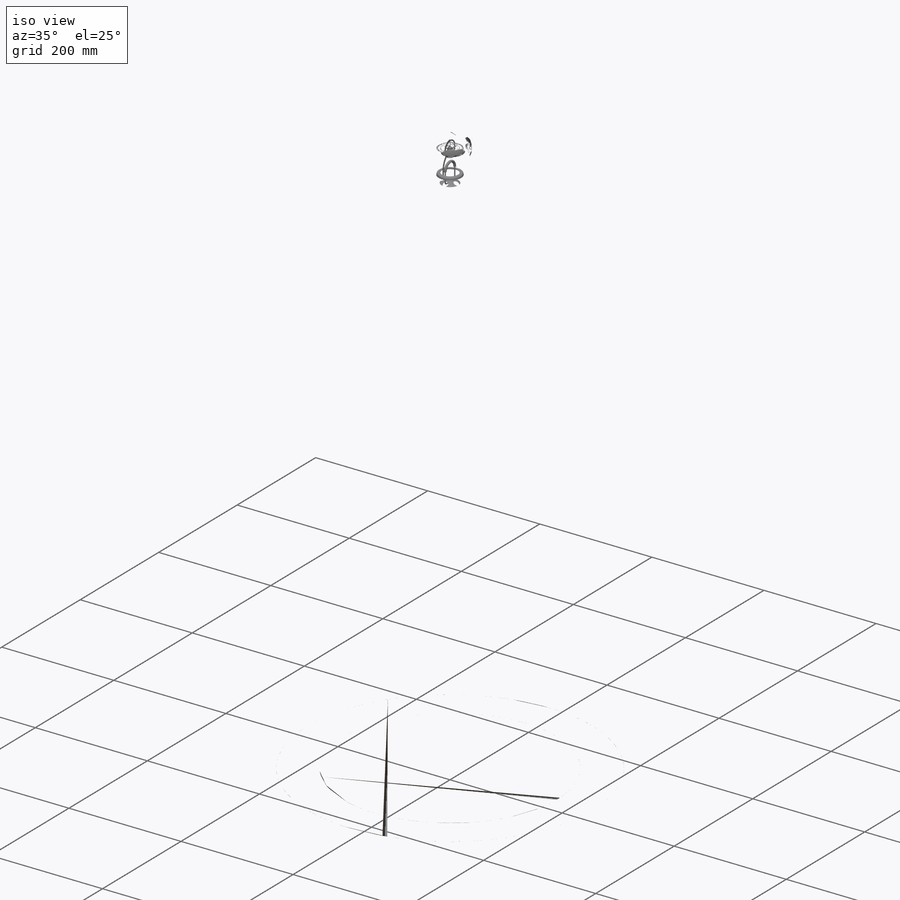
[diagram: iso view]
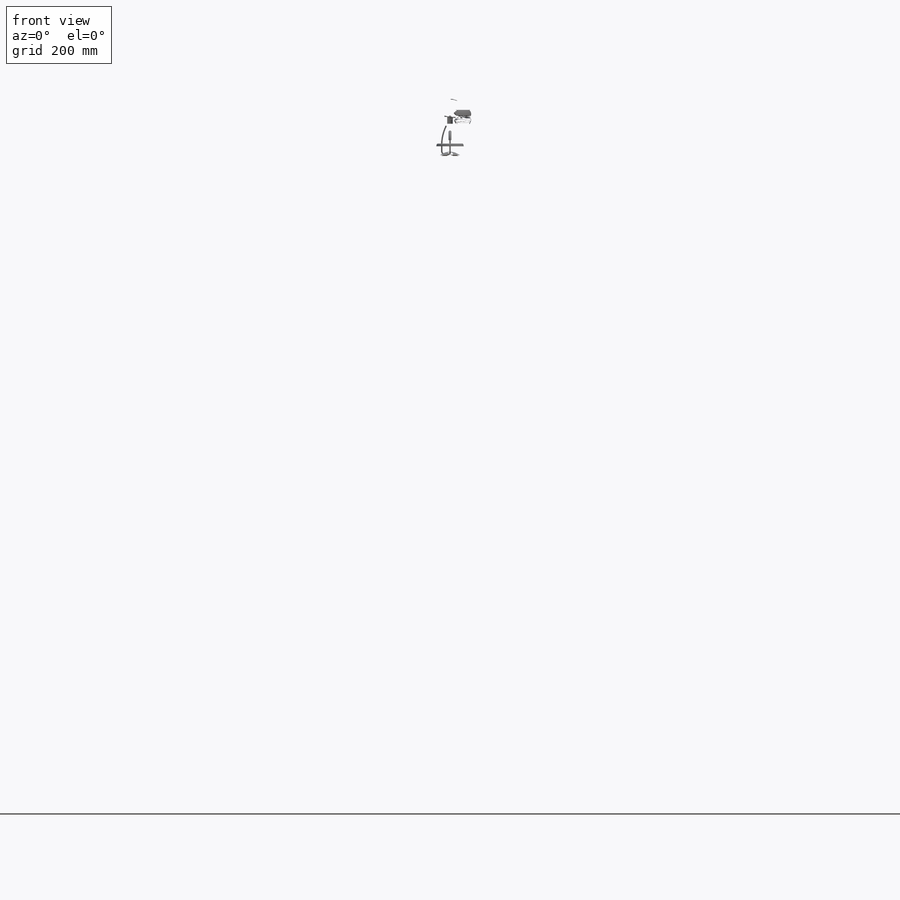
[diagram: front view]
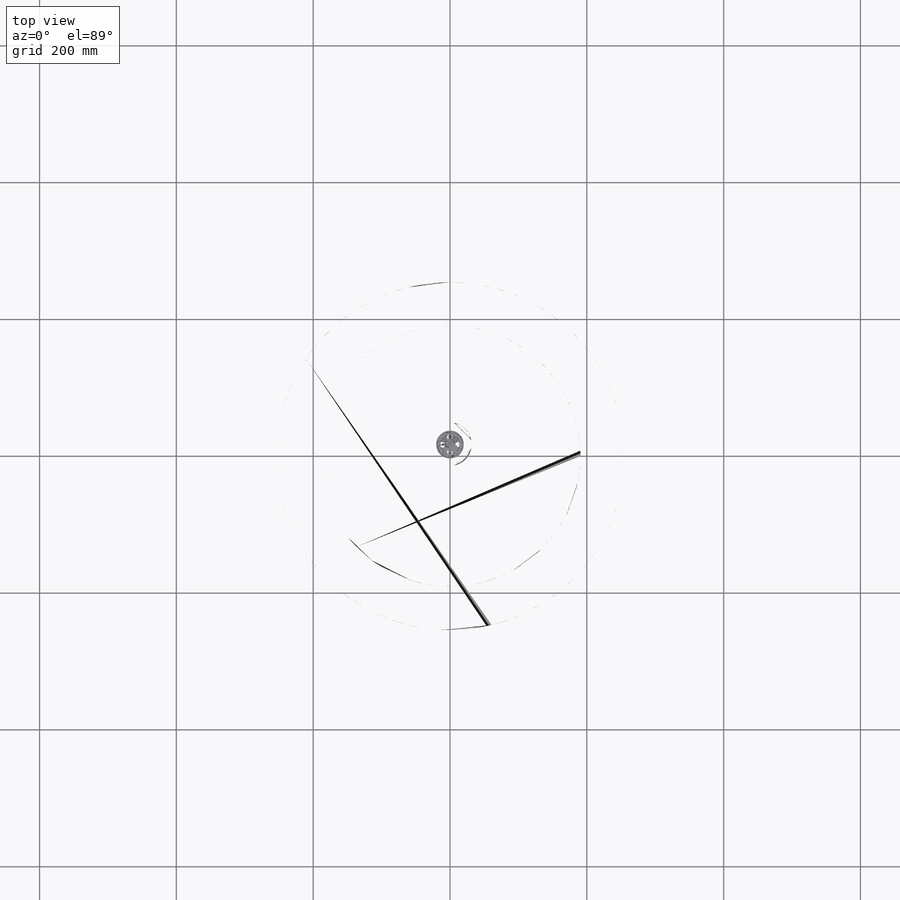
[diagram: top view]
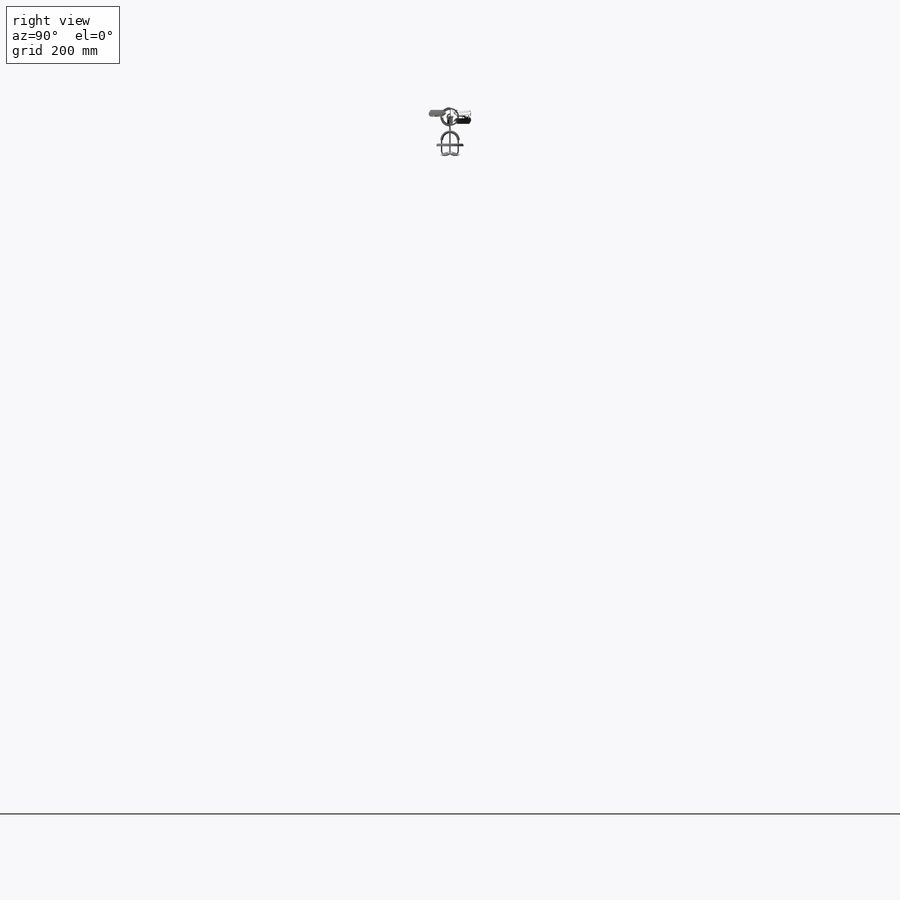
[diagram: right view]
SOLIDWORKS PART (.sldprt)
format: sldprt  version: not decoded by parser v0  size: 1,782,272 bytes
history: native  units: mm
features: thread x25, fillet x8, extrude x6, plane x4, cut_extrude x4, sweep x4, mirror x3, cut_revolve x2, material x1, sketch x1, revolve x1 (+9 scaffold rows collapsed)
feature tree (68):
  scaffold x9  (default folders/planes/origin — collapsed)
  material  "Tvárná litina"
  plane  "Přední rovina"
  plane  "Horní rovina"
  plane  "Pravá rovina"
  sketch  "Skica1"  dims[D1=10.0mm]
  extrude  "Přidat vysunutím1"  [1 undecoded]
  thread  "Kosmetický závit2"  Diameter=7mm  [1 undecoded]
  thread  "Skica2"  [2 undecoded]
  extrude  "Přidat vysunutím2"  Depth=5mm
  thread  "Skica5"  [2 undecoded]
  cut_extrude  "Odebrat vysunutím1"  Depth=5mm
  thread  "Skica6"  [2 undecoded]
  cut_extrude  "Odebrat vysunutím2"  Depth=5mm
  thread  "Skica7"  Diameter=50mm  [1 undecoded]
  thread  "Skica8"  [2 undecoded]
  sweep  "Táhnout po křivce1"
  mirror  "Zrcadlit1"
  fillet  "Zaoblit2"  Radius=1mm
  thread  "Skica11"  Diameter=2mm  [1 undecoded]
  revolve  "Rotovat1"  Angle=360deg
  thread  "Skica14"  Diameter=6mm  [1 undecoded]
  extrude  "Přidat vysunutím3"  [1 undecoded]
  thread  "Skica17"  [2 undecoded]
  thread  "Skica18"  [2 undecoded]
  thread  "Skica19"  Diameter=25.345325mm Rotovat2=65536  [1 undecoded]
  thread  "Skica20"  Diameter=4mm  [1 undecoded]
  thread  "Skica21"  Diameter=30mm  [1 undecoded]
  sweep  "Táhnout po křivce2"
  fillet  "Zaoblit4"  Radius=2mm
  thread  "Skica22"  Diameter=30mm  [1 undecoded]
  extrude  "Přidat vysunutím4"  Depth=1mm
  fillet  "Zaoblit5"  Radius=1.5mm
  thread  "Skica23"  Diameter=1.5mm  [1 undecoded]
  cut_revolve  "Odebrat rotací1"  Angle=360deg
  thread  "Skica24"  Diameter=3mm  [1 undecoded]
  extrude  "Přidat vysunutím6"  [1 undecoded]
  thread  "Skica25"  Diameter=8mm  [1 undecoded]
  cut_extrude  "Odebrat vysunutím3"  Depth=1.5mm
  thread  "Skica26"  Diameter=0mm  [1 undecoded]
  thread  "Skica29"  Diameter=2mm  [1 undecoded]
  cut_revolve  "Odebrat rotací3"  Angle=360deg
  thread  "Skica30"  Diameter=10mm  [1 undecoded]
  thread  "Skica31"  Diameter=4mm  [1 undecoded]
  thread  "Skica32"  Diameter=1.062362mm  [1 undecoded]
  sweep  "Odebrat tažením po křivce3"
  mirror  "Zrcadlit3"
  thread  "Skica33"  Diameter=1.389776mm  [1 undecoded]
  sweep  "Odebrat tažením po křivce4"
  mirror  "Zrcadlit4"
  plane  "Rovina2"  Offset=25mm
  thread  "Skica34"  Diameter=2.165964mm  [1 undecoded]
  extrude  "Přidat vysunutím7"  Depth=3mm
  fillet  "Zaoblit16"  Radius=0.5mm
  thread  "Skica35"  Diameter=2mm  [1 undecoded]
  cut_extrude  "Odebrat vysunutím4"  Depth=6.1mm
  fillet  "Zaoblit17"  Radius=0.5mm
  fillet  "Zaoblit19"  Radius=0.2mm
  fillet  "Zaoblit20"  Radius=0.2mm
  fillet  "Zaoblit21"  Radius=0.2mm
decode coverage: 38 of 54 modeling features carry decoded parameters
note: 34 parameter values undecoded
summary: no parameter record found for 9 features
note: suppression state not decoded; provenance and decode notes live in map.json
